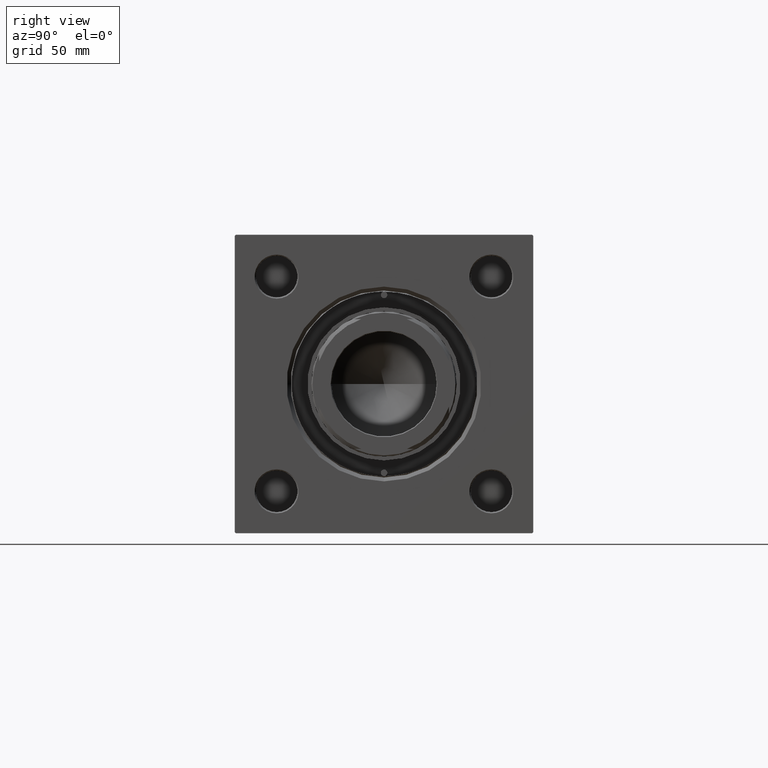
[diagram: clean part render]
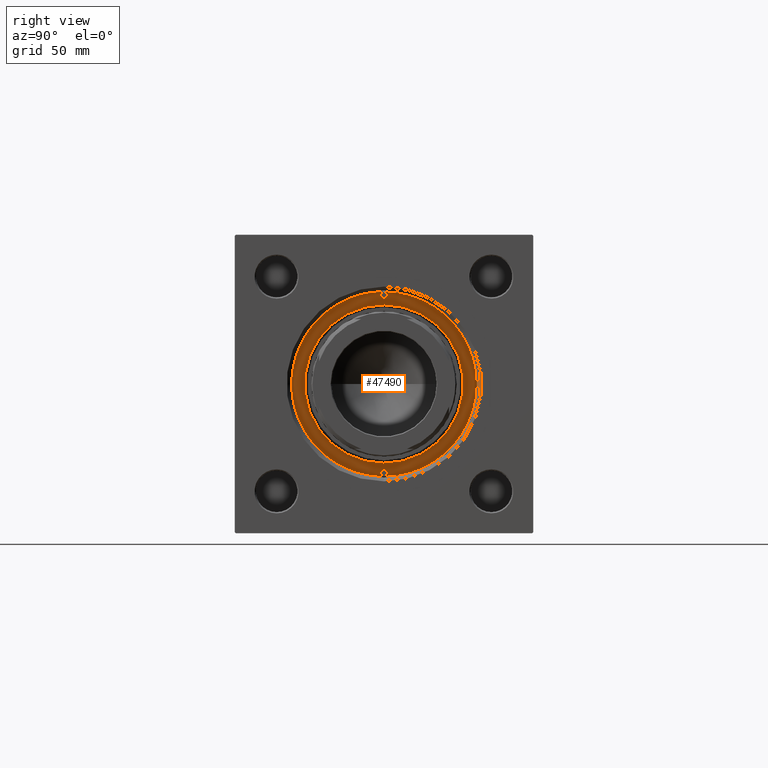
[diagram: same view with one face highlighted and labeled with its STEP entity id]
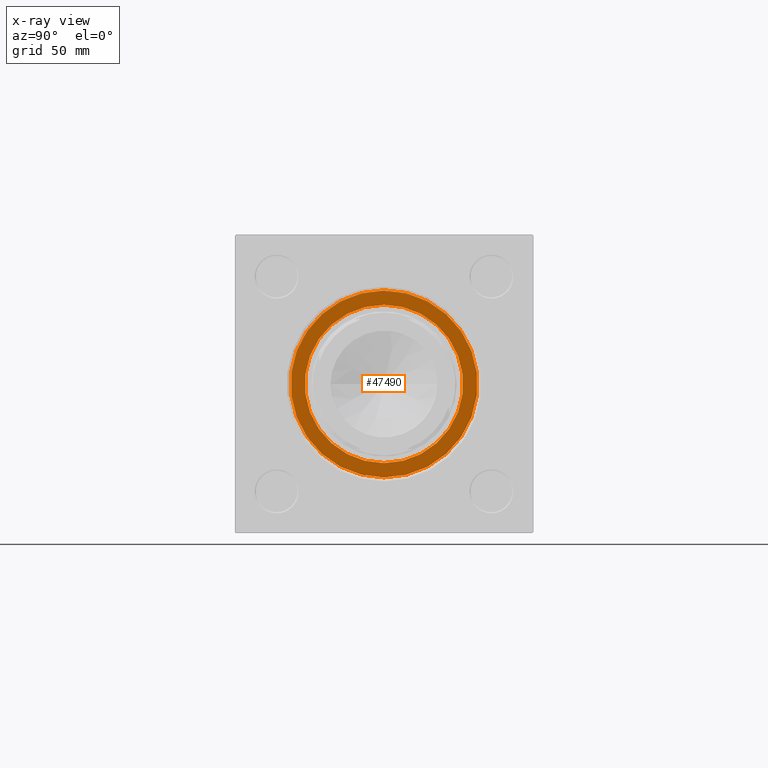
[diagram: x-ray of the same camera — body ghosted, the highlighted face saturated]
A machine part, right view. The second image highlights one B-rep face of the part: STEP entity #47490.
The next image is the same camera in x-ray: the body ghosted, the highlighted face saturated — about 7% of this face is hidden behind the body in this view.
In plain terms, the highlighted planar face has unit normal (1, 0, 0).
Its self-contained STEP definition (entity closure, byte-faithful):
#196 = AXIS2_PLACEMENT_3D ( 'NONE', #24259, #35596, #28127 ) ;
#1513 = DIRECTION ( 'NONE',  ( 0.000000000000000000, 0.000000000000000000, -1.000000000000000000 ) ) ;
#1690 = AXIS2_PLACEMENT_3D ( 'NONE', #47611, #24991, #36054 ) ;
#2523 = CARTESIAN_POINT ( 'NONE',  ( 150.2999999999999829, 4.408728476930470856E-15, 36.00000000000000000 ) ) ;
#4382 = AXIS2_PLACEMENT_3D ( 'NONE', #7630, #38976, #16841 ) ;
#7630 = CARTESIAN_POINT ( 'NONE',  ( 150.2999999999999829, 0.000000000000000000, 0.000000000000000000 ) ) ;
#9233 = CARTESIAN_POINT ( 'NONE',  ( 150.2999999999999829, 0.000000000000000000, -36.00000000000000000 ) ) ;
#9834 = CIRCLE ( 'NONE', #38556, 30.50000000000000000 ) ;
#11696 = CIRCLE ( 'NONE', #35503, 30.50000000000000000 ) ;
#13321 = CARTESIAN_POINT ( 'NONE',  ( 150.2999999999999829, 0.000000000000000000, 0.000000000000000000 ) ) ;
#14681 = EDGE_CURVE ( 'NONE', #20365, #24862, #23827, .T. ) ;
#16841 = DIRECTION ( 'NONE',  ( 0.000000000000000000, 0.000000000000000000, -1.000000000000000000 ) ) ;
#18355 = ORIENTED_EDGE ( 'NONE', *, *, #22051, .T. ) ;
#18526 = ORIENTED_EDGE ( 'NONE', *, *, #20220, .F. ) ;
#19220 = ORIENTED_EDGE ( 'NONE', *, *, #14681, .T. ) ;
#19891 = PLANE ( 'NONE',  #196 ) ;
#20220 = EDGE_CURVE ( 'NONE', #34024, #27447, #11696, .T. ) ;
#20365 = VERTEX_POINT ( 'NONE', #2523 ) ;
#22051 = EDGE_CURVE ( 'NONE', #24862, #20365, #49538, .T. ) ;
#23827 = CIRCLE ( 'NONE', #1690, 36.00000000000000000 ) ;
#24259 = CARTESIAN_POINT ( 'NONE',  ( 150.2999999999999829, 0.000000000000000000, 0.000000000000000000 ) ) ;
#24550 = ORIENTED_EDGE ( 'NONE', *, *, #42405, .F. ) ;
#24862 = VERTEX_POINT ( 'NONE', #9233 ) ;
#24991 = DIRECTION ( 'NONE',  ( 1.000000000000000000, 0.000000000000000000, 0.000000000000000000 ) ) ;
#27447 = VERTEX_POINT ( 'NONE', #49739 ) ;
#28127 = DIRECTION ( 'NONE',  ( 0.000000000000000000, 0.000000000000000000, -1.000000000000000000 ) ) ;
#28497 = DIRECTION ( 'NONE',  ( 0.000000000000000000, 0.000000000000000000, -1.000000000000000000 ) ) ;
#31718 = FACE_BOUND ( 'NONE', #50726, .T. ) ;
#32348 = CARTESIAN_POINT ( 'NONE',  ( 150.2999999999999829, 0.000000000000000000, 0.000000000000000000 ) ) ;
#34024 = VERTEX_POINT ( 'NONE', #34782 ) ;
#34782 = CARTESIAN_POINT ( 'NONE',  ( 150.2999999999999829, 3.735172737399427541E-15, 30.50000000000000000 ) ) ;
#35503 = AXIS2_PLACEMENT_3D ( 'NONE', #13321, #48271, #1513 ) ;
#35596 = DIRECTION ( 'NONE',  ( 1.000000000000000000, 0.000000000000000000, 0.000000000000000000 ) ) ;
#35629 = EDGE_LOOP ( 'NONE', ( #18355, #19220 ) ) ;
#35838 = FACE_OUTER_BOUND ( 'NONE', #35629, .T. ) ;
#36054 = DIRECTION ( 'NONE',  ( 0.000000000000000000, 0.000000000000000000, -1.000000000000000000 ) ) ;
#38556 = AXIS2_PLACEMENT_3D ( 'NONE', #32348, #48523, #28497 ) ;
#38976 = DIRECTION ( 'NONE',  ( 1.000000000000000000, 0.000000000000000000, 0.000000000000000000 ) ) ;
#42405 = EDGE_CURVE ( 'NONE', #27447, #34024, #9834, .T. ) ;
#47490 = ADVANCED_FACE ( 'NONE', ( #31718, #35838 ), #19891, .T. ) ;
#47611 = CARTESIAN_POINT ( 'NONE',  ( 150.2999999999999829, 0.000000000000000000, 0.000000000000000000 ) ) ;
#48271 = DIRECTION ( 'NONE',  ( 1.000000000000000000, 0.000000000000000000, 0.000000000000000000 ) ) ;
#48523 = DIRECTION ( 'NONE',  ( 1.000000000000000000, 0.000000000000000000, 0.000000000000000000 ) ) ;
#49538 = CIRCLE ( 'NONE', #4382, 36.00000000000000000 ) ;
#49739 = CARTESIAN_POINT ( 'NONE',  ( 150.2999999999999829, 0.000000000000000000, -30.50000000000000000 ) ) ;
#50726 = EDGE_LOOP ( 'NONE', ( #24550, #18526 ) ) ;